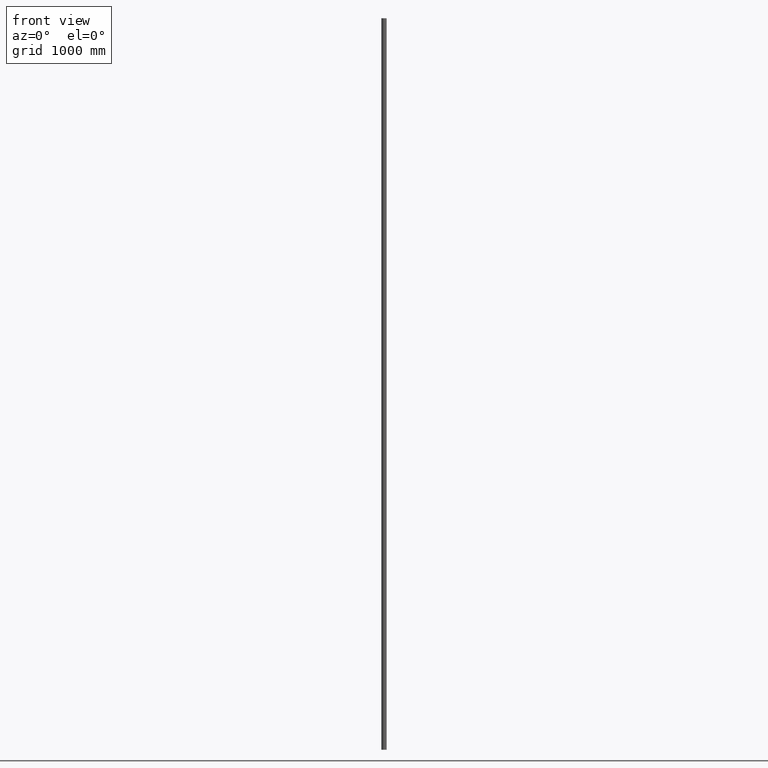
[diagram: clean part render]
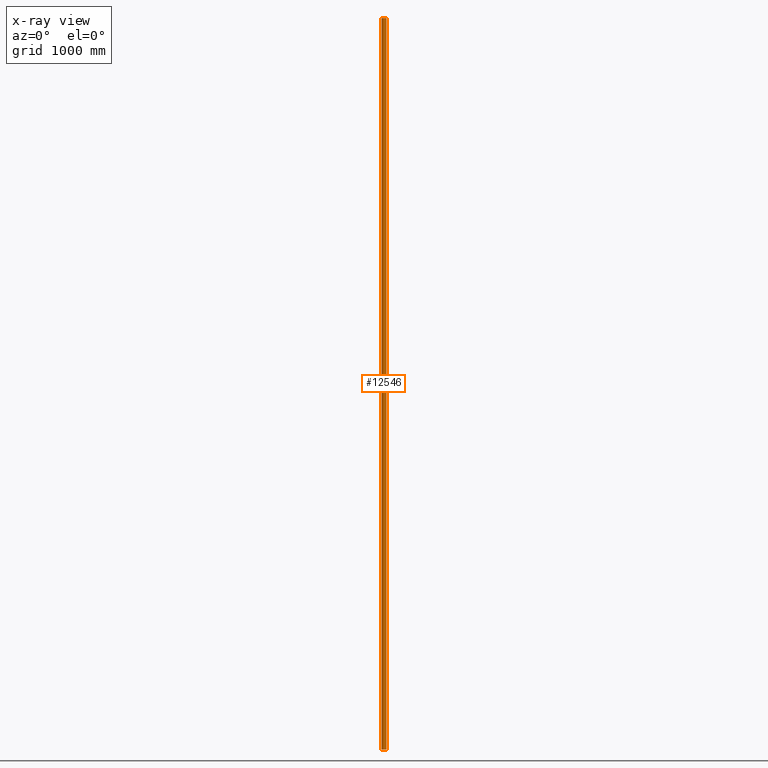
[diagram: x-ray — body ghosted, one internal face saturated and labeled with its STEP entity id]
A machine part, front view, then the same camera in x-ray: the body is ghosted and one INTERNAL B-rep face — a face not visible from any outside direction — is saturated and labeled: STEP entity #12546.
In plain terms, the highlighted cylindrical surface (bore or boss wall) has radius 21.2 mm, axis along (-0, -0, -1).
Its self-contained STEP definition (entity closure, byte-faithful):
#703 = ORIENTED_EDGE ( 'NONE', *, *, #10805, .F. ) ;
#1361 = DIRECTION ( 'NONE',  ( 0.000000000000000000, 0.000000000000000000, 1.000000000000000000 ) ) ;
#1854 = AXIS2_PLACEMENT_3D ( 'NONE', #9305, #9355, #2150 ) ;
#2150 = DIRECTION ( 'NONE',  ( 1.000000000000000000, 0.000000000000000000, 0.000000000000000000 ) ) ;
#2848 = CARTESIAN_POINT ( 'NONE',  ( 21.19999999999999929, 0.000000000000000000, -3000.000000000000000 ) ) ;
#4070 = AXIS2_PLACEMENT_3D ( 'NONE', #7442, #1361, #8451 ) ;
#4158 = DIRECTION ( 'NONE',  ( -1.000000000000000000, 0.000000000000000000, 0.000000000000000000 ) ) ;
#6146 = CIRCLE ( 'NONE', #4070, 21.19999999999999929 ) ;
#6767 = EDGE_CURVE ( 'NONE', #9706, #9706, #11540, .T. ) ;
#7003 = VERTEX_POINT ( 'NONE', #12739 ) ;
#7107 = DIRECTION ( 'NONE',  ( -0.000000000000000000, -0.000000000000000000, -1.000000000000000000 ) ) ;
#7442 = CARTESIAN_POINT ( 'NONE',  ( 0.000000000000000000, 0.000000000000000000, 3000.000000000000000 ) ) ;
#8075 = FACE_OUTER_BOUND ( 'NONE', #8258, .T. ) ;
#8258 = EDGE_LOOP ( 'NONE', ( #703 ) ) ;
#8451 = DIRECTION ( 'NONE',  ( 1.000000000000000000, 0.000000000000000000, 0.000000000000000000 ) ) ;
#8519 = AXIS2_PLACEMENT_3D ( 'NONE', #11117, #7107, #4158 ) ;
#8579 = EDGE_LOOP ( 'NONE', ( #11868 ) ) ;
#9305 = CARTESIAN_POINT ( 'NONE',  ( 0.000000000000000000, 0.000000000000000000, -3000.000000000000000 ) ) ;
#9355 = DIRECTION ( 'NONE',  ( 0.000000000000000000, 0.000000000000000000, 1.000000000000000000 ) ) ;
#9706 = VERTEX_POINT ( 'NONE', #2848 ) ;
#10805 = EDGE_CURVE ( 'NONE', #7003, #7003, #6146, .T. ) ;
#11117 = CARTESIAN_POINT ( 'NONE',  ( 0.000000000000000000, 0.000000000000000000, 3000.000000000000000 ) ) ;
#11540 = CIRCLE ( 'NONE', #1854, 21.19999999999999929 ) ;
#11868 = ORIENTED_EDGE ( 'NONE', *, *, #6767, .T. ) ;
#11978 = FACE_OUTER_BOUND ( 'NONE', #8579, .T. ) ;
#12546 = ADVANCED_FACE ( 'NONE', ( #8075, #11978 ), #13043, .T. ) ;
#12739 = CARTESIAN_POINT ( 'NONE',  ( 21.19999999999999929, 0.000000000000000000, 3000.000000000000000 ) ) ;
#13043 = CYLINDRICAL_SURFACE ( 'NONE', #8519, 21.19999999999999929 ) ;